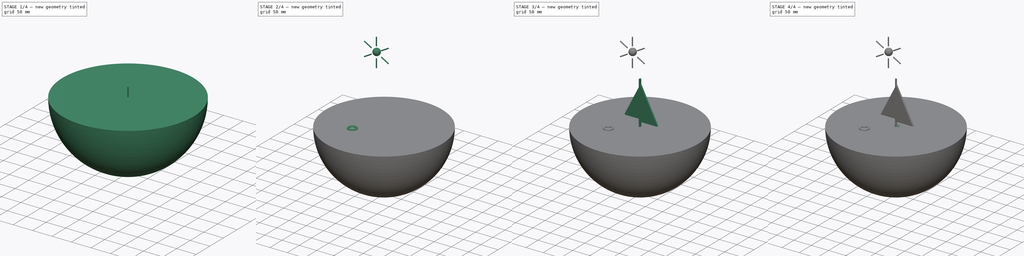
[diagram: build sequence overview — one tinted view per stage of 4, left to right]
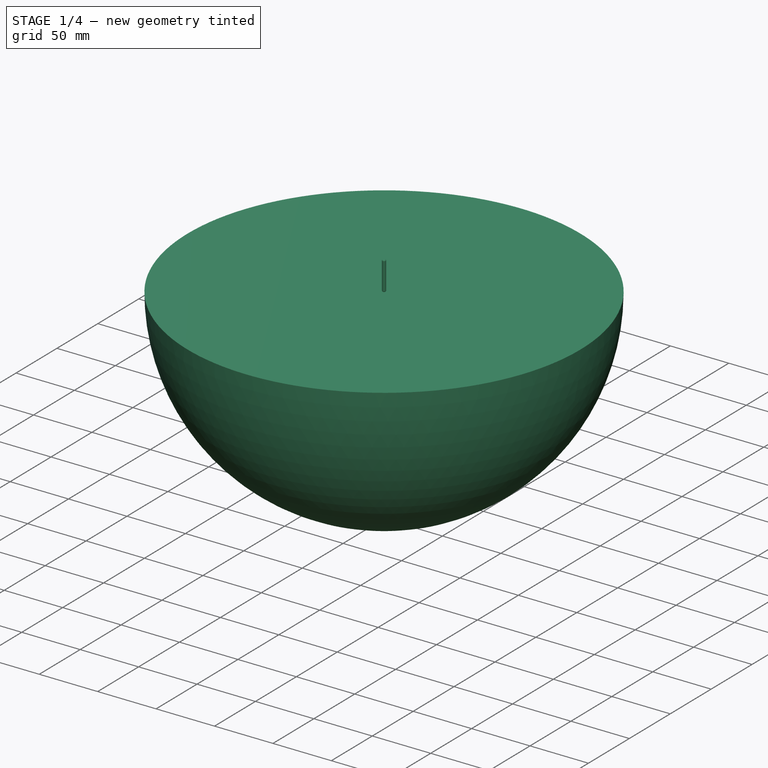
[diagram: stage 1 of 4 — iso view after this stage's code; geometry added in this stage tinted green]
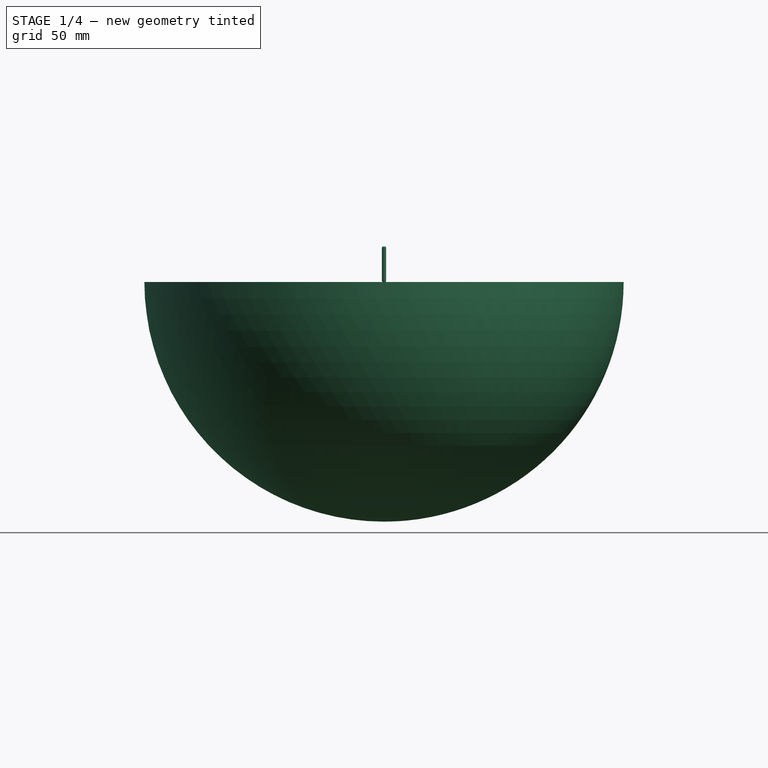
[diagram: stage 1 of 4 — front view after this stage's code; geometry added in this stage tinted green]
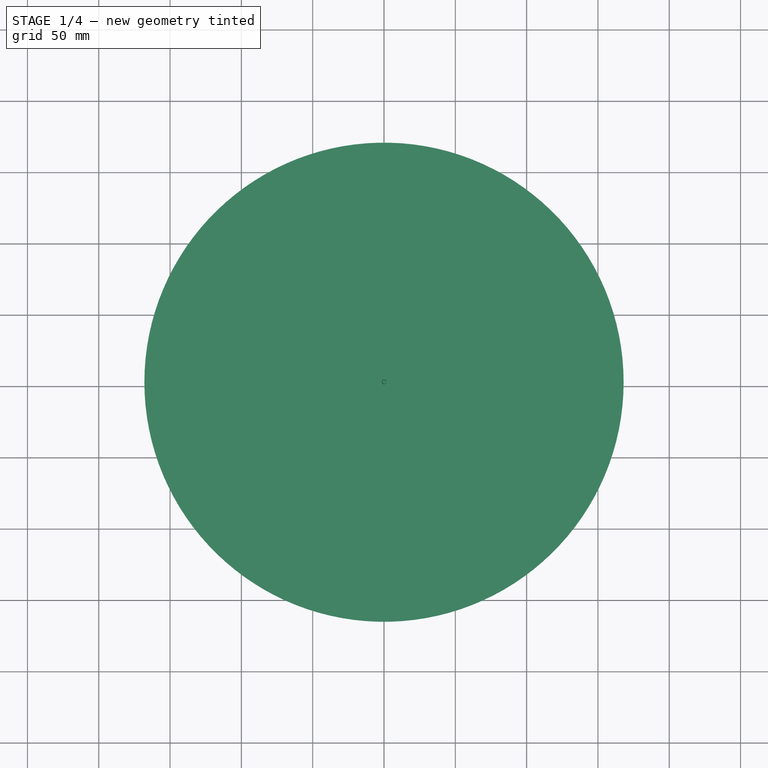
[diagram: stage 1 of 4 — top view after this stage's code; geometry added in this stage tinted green]
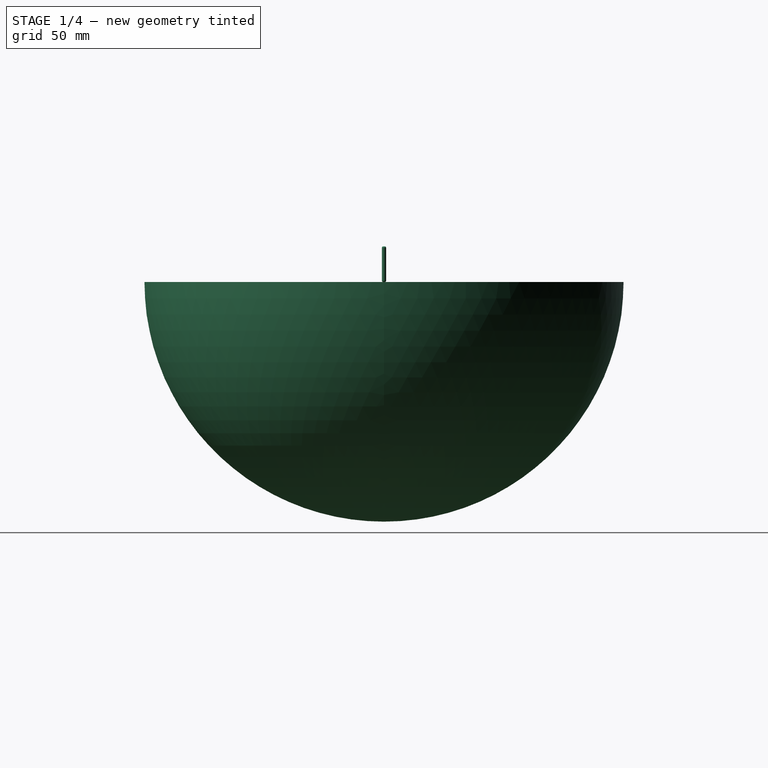
[diagram: stage 1 of 4 — right view after this stage's code; geometry added in this stage tinted green]
FCSTD DOCUMENT  (FreeCAD 0.19R)
Label: MyLittleWorld
License: Creative Commons Attribution-ShareAlike
LicenseURL: http://creativecommons.org/licenses/by-sa/4.0/
objects: App::Part×9, App::Link×6, App::LinkElement×5, PartDesign::Body×4, PartDesign::Fillet×4, Part::Feature×4, Sketcher::SketchObject×3, PartDesign::AdditiveSphere×1, PartDesign::Pad×1, Part::Sphere×1, Part::Torus×1, PartDesign::AdditiveLoft×1, PartDesign::AdditiveCylinder×1, Part::FeaturePython×1
note: 26 computed .brp shape members not serialized (recipe doc carries the construction recipe); baked Part::Feature solids carry a one-line shape summary decoded from their .brp

FEATURE [PartDesign::AdditiveSphere] Sphere
  Angle1 = -90
  Angle2 = 0
  Angle3 = 360
  AttacherType = Attacher::AttachEngine3D
  Radius = 168
  expr: Radius = 42 * 4
FEATURE [PartDesign::Body] Body002  label="Seagull_Body"
  Group = -> [Sketch001,Sketch002,AdditiveLoft]
  Origin = -> Origin003
  Placement = pos=(63,0,7) rot=(0,1,0;0.523599rad)
  Tip = -> AdditiveLoft
FEATURE [App::Link] Link  label="Seagull_Link"
  LinkPlacement = pos=(-96.1008,2.14946,-5) rot=(-0.295804,0.200858,0.933893;0.682321rad)
  LinkedObject = -> Body002
  Placement = pos=(-96.1008,2.14946,-5) rot=(-0.295804,0.200858,0.933893;0.682321rad)
FEATURE [Part::Feature] Link__sc_export  label="Seagull_sc_export"
  Placement = pos=(-32.5013,185.634,-31.0649) rot=(-0.793638,-0.348669,0.498567;0.271776rad)
  shape: bbox 17.76 x 12.3 x 10.99 mm, 4 faces (baked)
FEATURE [App::LinkElement] Link001_i0  label="Link001_i0_BR"
  LinkPlacement = pos=(54.339,190.451,-33.0404) rot=(-0.042799,-0.193053,-0.980254;0.444837rad)
  LinkedObject = -> Link__sc_export
  Placement = pos=(54.339,190.451,-33.0404) rot=(-0.042799,-0.193053,-0.980254;0.444837rad)
FEATURE [App::LinkElement] Link001_i1  label="Link001_i1_BL"
  LinkPlacement = pos=(-120.304,186.259,-13.2356) rot=(-0.111133,0.111133,0.987572;1.1442rad)
  LinkedObject = -> Link__sc_export
  Placement = pos=(-120.304,186.259,-13.2356) rot=(-0.111133,0.111133,0.987572;1.1442rad)
  Scale = 0.6
  ScaleVector = (0.6,0.6,0.6)
FEATURE [App::LinkElement] Link001_i2  label="Link001_i2_FL"
  LinkPlacement = pos=(-114.904,-8.05105,-23.1913) rot=(0.078182,-0.101888,0.991719;1.49182rad)
  LinkedObject = -> Link__sc_export
  Placement = pos=(-114.904,-8.05105,-23.1913) rot=(0.078182,-0.101888,0.991719;1.49182rad)
  Scale = 0.9
  ScaleVector = (0.9,0.9,0.9)
FEATURE [App::LinkElement] Link001_i3  label="Link001_i3_FR"
  LinkPlacement = pos=(101.67,2.6489,-29.7002) rot=(-0.409065,-0.236174,-0.881412;1.1598rad)
  LinkedObject = -> Link__sc_export
  Placement = pos=(101.67,2.6489,-29.7002) rot=(-0.409065,-0.236174,-0.881412;1.1598rad)
FEATURE [App::LinkElement] Link001_i4  label="Link001_i4_FC"
  LinkPlacement = pos=(-29.7043,-10.2448,-2.39746) rot=(-0.622893,-0.359627,0.694747;0.7362rad)
  LinkedObject = -> Link__sc_export
  Placement = pos=(-29.7043,-10.2448,-2.39746) rot=(-0.622893,-0.359627,0.694747;0.7362rad)
  Scale = 0.8
  ScaleVector = (0.8,0.8,0.8)
FEATURE [App::Link] Link001  label="Seagull_Array"
  ElementCount = 5
  ElementList = -> [Link001_i0,Link001_i1,Link001_i2,Link001_i3,Link001_i4]
  LinkedObject = -> Link__sc_export
FEATURE [App::Part] Part001  label="Seagulls"
  Group = -> [Body002,Link,Link__sc_export,Link001]
  Origin = -> Origin004
  Placement = pos=(0,0,130) rot=(0,0,1;0rad)
FEATURE [App::Link] Link002  label="Ship_Link"
  LinkedObject = -> Part004
FEATURE [App::Part] Part006  label="Torus_Part"
  Group = -> [Torus]
  Origin = -> Origin009
FEATURE [App::Link] Link003  label="Torus_Link"
  LinkedObject = -> Part006
FEATURE [App::Link] Link004  label="Sun_Link"
  LinkedObject = -> Part005
FEATURE [PartDesign::AdditiveCylinder] Cylinder
  Angle = 360
  AttacherType = Attacher::AttachEngine3D
  Height = 25
  Radius = 1.5
FEATURE [PartDesign::Fillet] Fillet003
  Base = -> Cylinder [Face1]
  BaseFeature = -> Cylinder
  Radius = 1
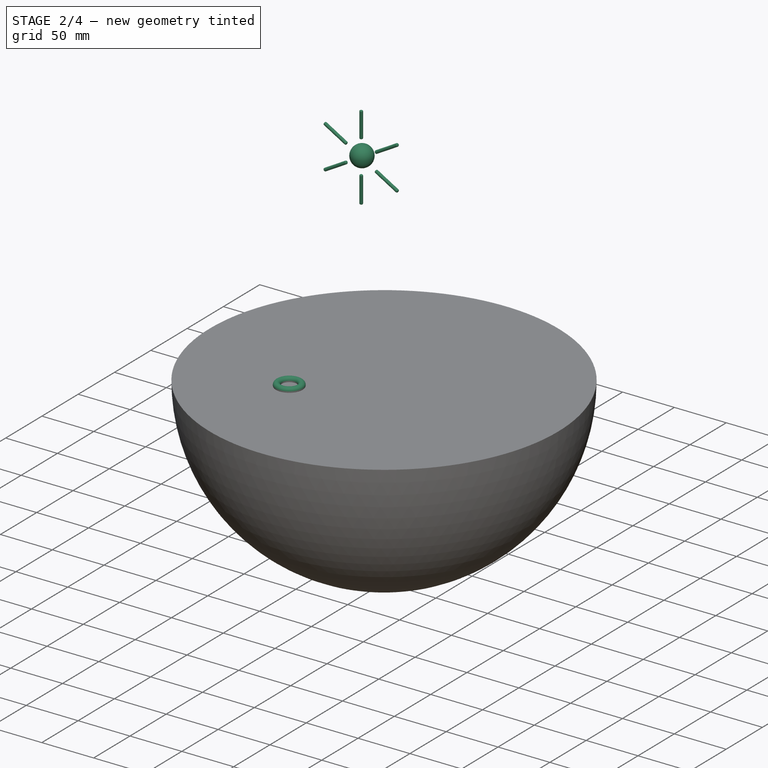
[diagram: stage 2 of 4 — iso view after this stage's code; geometry added in this stage tinted green]
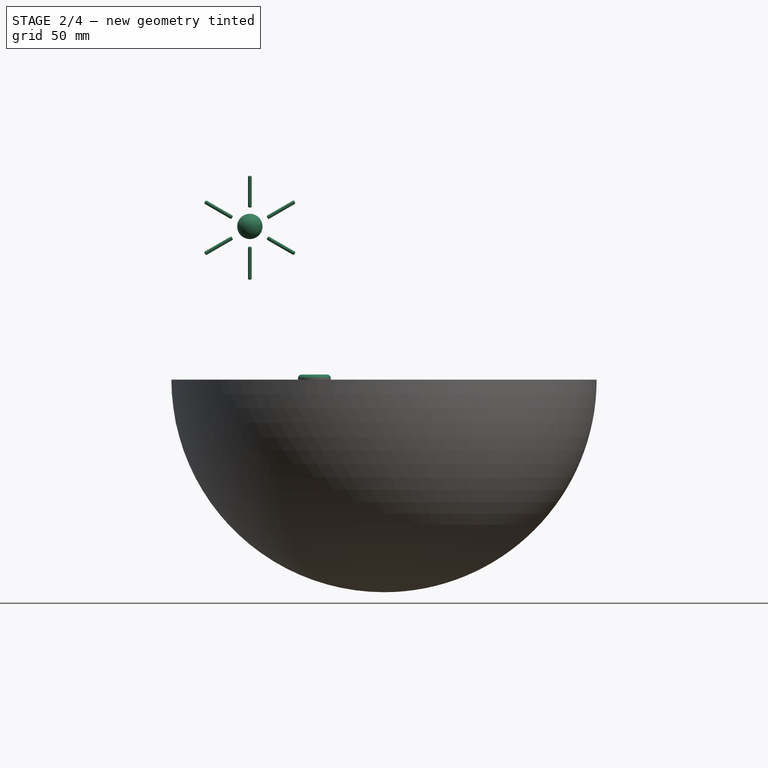
[diagram: stage 2 of 4 — front view after this stage's code; geometry added in this stage tinted green]
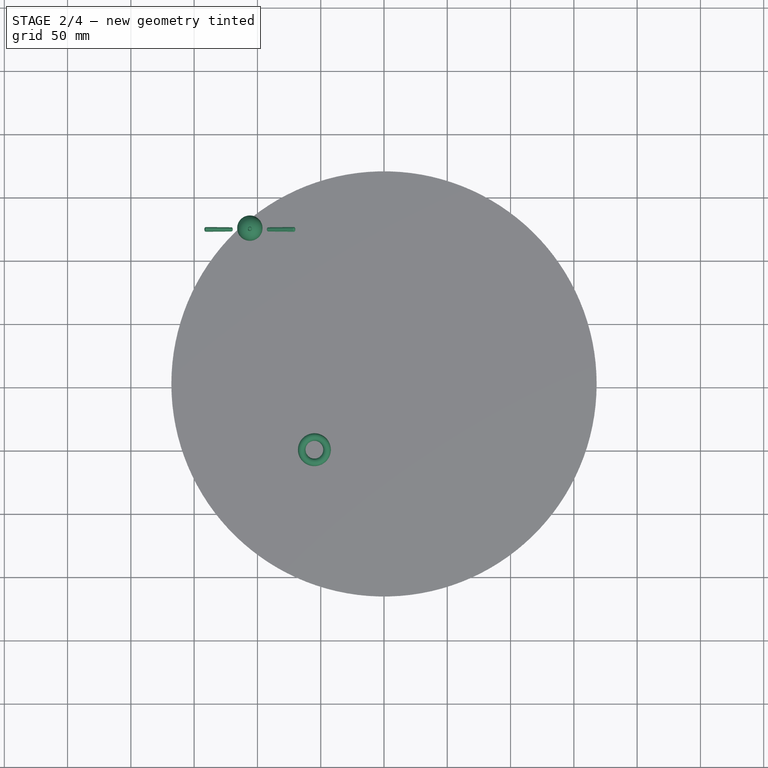
[diagram: stage 2 of 4 — top view after this stage's code; geometry added in this stage tinted green]
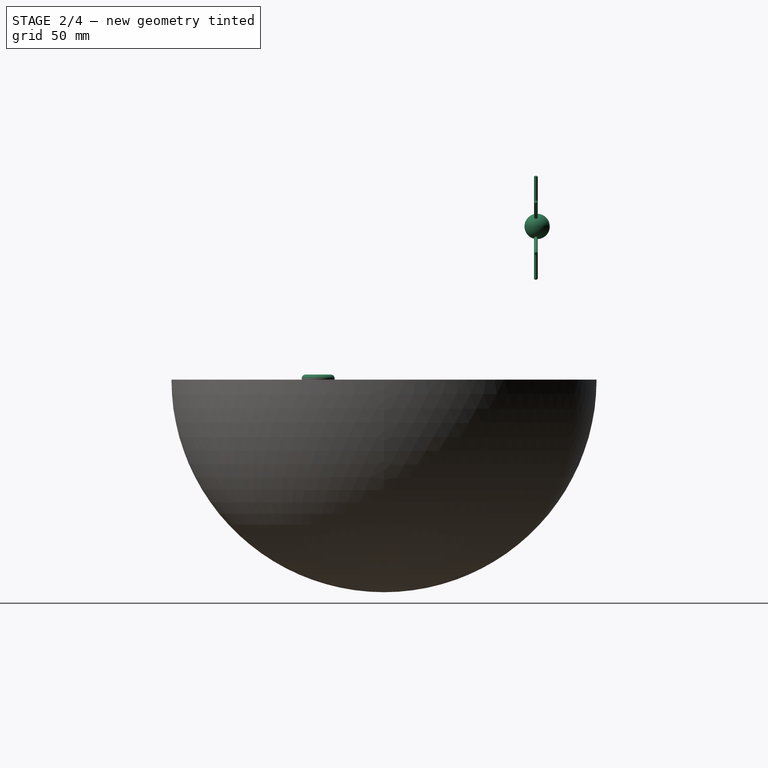
[diagram: stage 2 of 4 — right view after this stage's code; geometry added in this stage tinted green]
FEATURE [PartDesign::Body] Body001  label="Ship_Body"
  Group = -> [Sketch,Pad,Fillet,Fillet001,Fillet002]
  Origin = -> Origin002
  Placement = pos=(0,5,24) rot=(0,0,1;0rad)
  Tip = -> Fillet002
FEATURE [Part::Sphere] Sphere001  label="Sun_Sphere"
  Angle1 = -90
  Angle2 = 90
  Angle3 = 360
  AttacherType = Attacher::AttachEngine3D
  Placement = pos=(-106,121,121) rot=(0,0,1;1.309rad)
  Radius = 10
FEATURE [Part::Torus] Torus
  Angle1 = -180
  Angle2 = 180
  Angle3 = 360
  AttacherType = Attacher::AttachEngine3D
  Placement = pos=(-55,-52,1) rot=(0,0,1;0rad)
  Radius1 = 10
  Radius2 = 3
FEATURE [PartDesign::Body] Body003  label="SunBeam_Body"
  Group = -> [Cylinder,Fillet003]
  Origin = -> Origin010
  Tip = -> Fillet003
FEATURE [Part::Feature] Body001__sc_export  label="Ship_Body__sc_export"
  Placement = pos=(0,5,24) rot=(0,0,1;0rad)
  shape: bbox 165.8 x 4.2 x 168 mm, 77 faces (baked)
FEATURE [App::Part] Part004  label="Ship_Part"
  Group = -> [Body001,Body001__sc_export]
  Origin = -> Origin007
FEATURE [App::Link] Link005  label="SunBeam_Part_Link"
  LinkedObject = -> Part007
FEATURE [Part::FeaturePython] Array  # Draft array (typed FeaturePython)
  Angle = 360
  ArrayType = 2
  Axis = (0,1,0)
  Base = -> Link005
  Center = (0,0,40)
  Fuse = false
  IntervalAxis = (0,0,0)
  IntervalX = (1,0,0)
  IntervalY = (0,1,0)
  IntervalZ = (0,0,1)
  NumberCircles = 2
  NumberPolar = 6
  NumberX = 1
  NumberY = 1
  NumberZ = 1
  Placement = pos=(-106,120,80) rot=(0,0,1;0rad)
  RadialDistance = 1
  Symmetry = 1
  TangentialDistance = 1
FEATURE [Part::Feature] Body003__sc_export  label="SunBeam_Body__sc_export"
  shape: bbox 3 x 3 x 25 mm, 5 faces (baked)
FEATURE [App::Part] Part007  label="SunBeam_Part"
  Group = -> [Body003,Body003__sc_export]
  Origin = -> Origin011
FEATURE [App::Part] Part005  label="Sun_Part"
  Group = -> [Sphere001,Part007,Link005,Array]
  Origin = -> Origin008
FEATURE [App::Part] Part002  label="parts"
  Group = -> [Part004,Part005,Part006]
  Origin = -> Origin005
FEATURE [Part::Feature] Body__sc_export  label="World_Body__sc_export"
  shape: bbox 336 x 336 x 168 mm, 2 faces (baked)
FEATURE [App::Part] Part008  label="World_Part"
  Group = -> [Body,Body__sc_export]
  Origin = -> Origin012
FEATURE [App::Part] Part  label="MyLittleWorld"
  Group = -> [Link002,Link003,Link004,Part001,Part008]
  Origin = -> Origin001
FEATURE [App::Part] Part003  label="MyLittleWorld_Wrapper"
  Group = -> [Part002,Part]
  Origin = -> Origin006
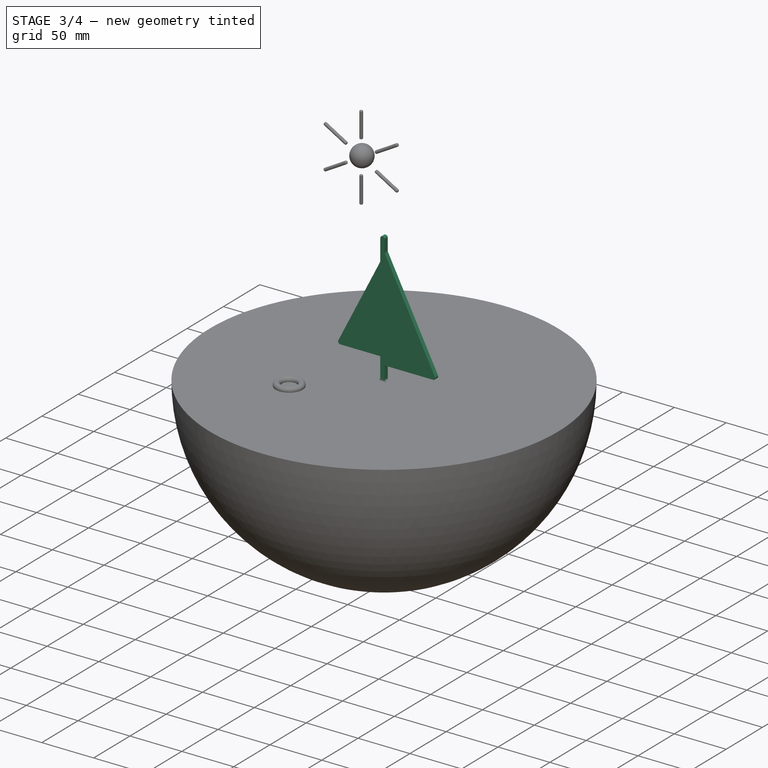
[diagram: stage 3 of 4 — iso view after this stage's code; geometry added in this stage tinted green]
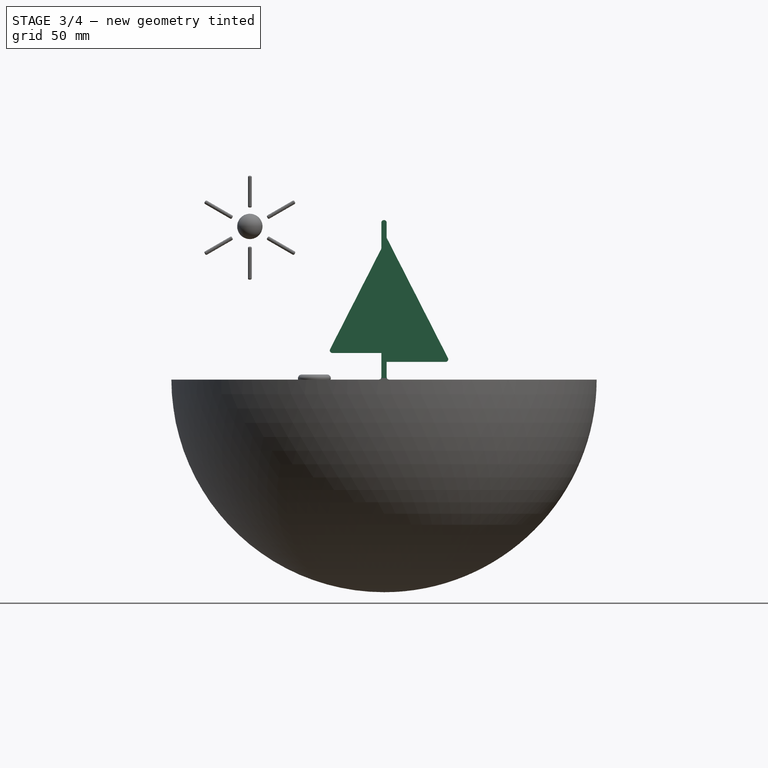
[diagram: stage 3 of 4 — front view after this stage's code; geometry added in this stage tinted green]
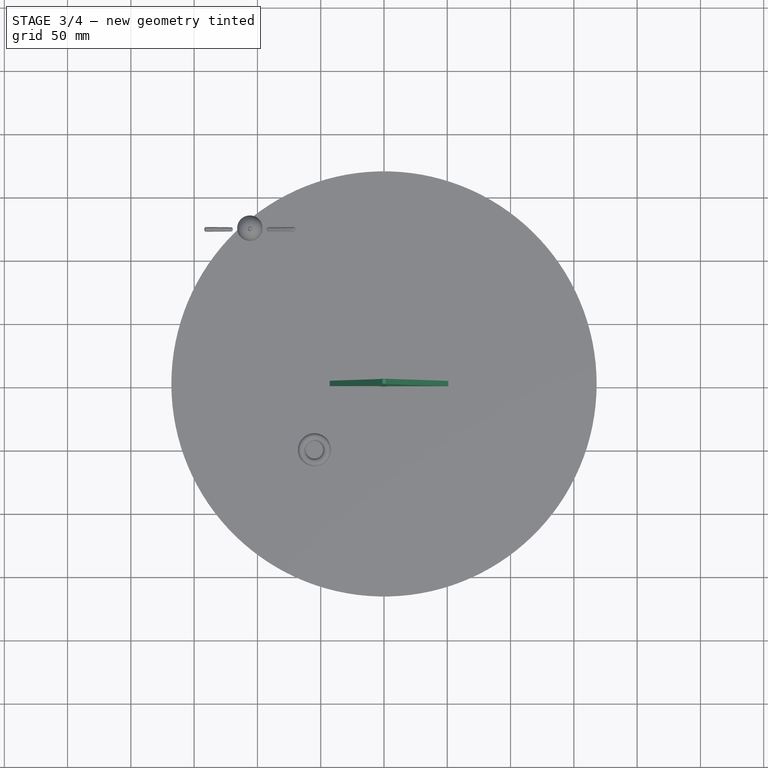
[diagram: stage 3 of 4 — top view after this stage's code; geometry added in this stage tinted green]
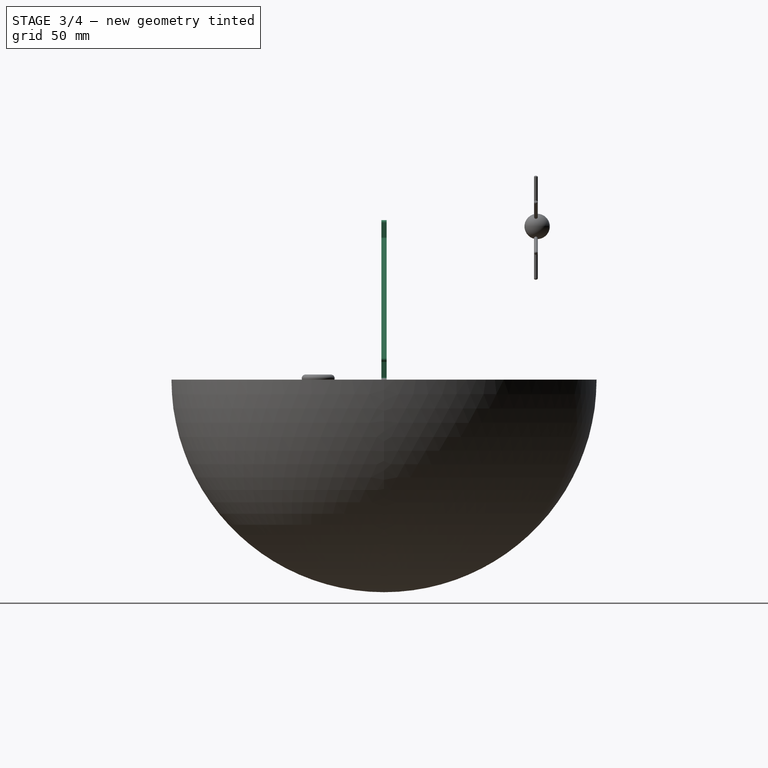
[diagram: stage 3 of 4 — right view after this stage's code; geometry added in this stage tinted green]
FEATURE [PartDesign::Body] Body  label="World_Body"
  Group = -> [Sphere]
  Origin = -> Origin
  Tip = -> Sphere
FEATURE [Sketcher::SketchObject] Sketch
  MapMode = 5
  Placement = pos=(0,0,0) rot=(1,0,0;1.5708rad)
  Support = -> [XZ_Plane002]
  expr: Constraints[44] = 42 / 3
  expr: Constraints[42] = 42 * 1.5
  expr: Constraints[40] = 42 * 1.5
  expr: Constraints[39] = 3 * 42
  expr: Constraints[38] = 2 * 42
  expr: Constraints[43] = 42 / 2
  expr: Constraints[34] = 4 * 42
  sketch-geometry (16):
    g0: LineSegment StartX=-86.1 StartY=0 StartZ=0 EndX=-44.6684 EndY=-37.3052 EndZ=0
    g1: LineSegment StartX=-44.6684 StartY=-37.3052 StartZ=0 EndX=0 EndY=-42 EndZ=0
    g2: LineSegment StartX=0 StartY=-42 StartZ=0 EndX=44.6684 EndY=-37.3052 EndZ=0
    g3: LineSegment StartX=44.6684 StartY=-37.3052 StartZ=0 EndX=86.1 EndY=0 EndZ=0
    g4: LineSegment StartX=86.1 StartY=0 StartZ=0 EndX=2.1 EndY=0 EndZ=0
    g5: LineSegment StartX=2.1 StartY=0 StartZ=0 EndX=2.1 EndY=14 EndZ=0
    g6: LineSegment StartX=2.1 StartY=14 StartZ=0 EndX=52.0335 EndY=14 EndZ=0
    g7: LineSegment StartX=52.0335 StartY=14 StartZ=0 EndX=2.1 EndY=112 EndZ=0
    g8: LineSegment StartX=2.1 StartY=112 StartZ=0 EndX=2.1 EndY=126 EndZ=0
    g9: LineSegment StartX=2.1 StartY=126 StartZ=0 EndX=-2.1 EndY=126 EndZ=0
    g10: LineSegment StartX=-2.1 StartY=126 StartZ=0 EndX=-2.1 EndY=103.43 EndZ=0
    g11: LineSegment StartX=-2.1 StartY=103.43 StartZ=0 EndX=-44.1 EndY=21 EndZ=0
    g12: LineSegment StartX=-44.1 StartY=21 StartZ=0 EndX=-2.1 EndY=21 EndZ=0
    g13: LineSegment StartX=-2.1 StartY=21 StartZ=0 EndX=-2.1 EndY=0 EndZ=0
    g14: LineSegment StartX=-2.1 StartY=0 StartZ=0 EndX=-86.1 EndY=0 EndZ=0
    g15: LineSegment [constr] StartX=-2.1 StartY=0 StartZ=0 EndX=2.1 EndY=0 EndZ=0
  constraints (46):
    c: Coincident(g0,g1)
    c: Coincident(g1,g2)
    c: Coincident(g2,g3)
    c: Coincident(g3,g4)
    c: Horizontal(g4)
    c: Coincident(g4,g5)
    c: Coincident(g5,g6)
    c: Horizontal(g6)
    c: Coincident(g6,g7)
    c: Coincident(g7,g8)
    c: Coincident(g8,g9)
    c: Horizontal(g9)
    c: Coincident(g9,g10)
    c: Vertical(g10)
    c: Coincident(g10,g11)
    c: Coincident(g11,g12)
    c: Horizontal(g12)
    c: Coincident(g12,g13)
    c: Coincident(g13,g14)
    c: Coincident(g14,g0)
    c: Horizontal(g14)
    c: Vertical(g13)
    c: Vertical(g5)
    c: Vertical(g8)
    c: Horizontal(g15)
    c: Coincident(g15,g4)
    c: Coincident(g13,g15)
    c: Symmetric(g15,g15,g-1)
    c: Equal(g15,g9)
    c: DistanceX(g9,g9) = 4.2
    c: PointOnObject(g10,g13)
    c: PointOnObject(g1,g-2)
    c: Angle(g4,g3) = 0.733038
    c: Angle(g0,g14) = 0.733038
    c: Angle(g2,g1) = 2.93215
    c: DistanceY(g1) = -42
    c: Equal(g2,g1)
    c: Equal(g3,g0)
    c: DistanceX(g4,g4) = 84
    c: DistanceY(g9) = 126
    c: Angle(g7,g6) = 1.09956
    c: Equal(g8,g5)
    c: Angle(g12,g11) = 1.09956
    c: DistanceY(g13,g13) = 21
    c: DistanceY(g8,g8) = 14
    c: DistanceX(g12,g12) = 42
FEATURE [PartDesign::Pad] Pad
  Length = 4.2
  Length2 = 100
  Midplane = true
  Placement = pos=(0,0,0) rot=(1,0,0;1.5708rad)
  Profile = -> Sketch
  Type = 0
FEATURE [PartDesign::Fillet] Fillet001
  Base = -> Pad [Edge11,Edge1,Edge41,Edge14,Edge35,Edge20,Edge26,Edge29,Edge23,Edge32]
  BaseFeature = -> Pad
  Placement = pos=(0,0,0) rot=(1,0,0;1.5708rad)
  Radius = 2
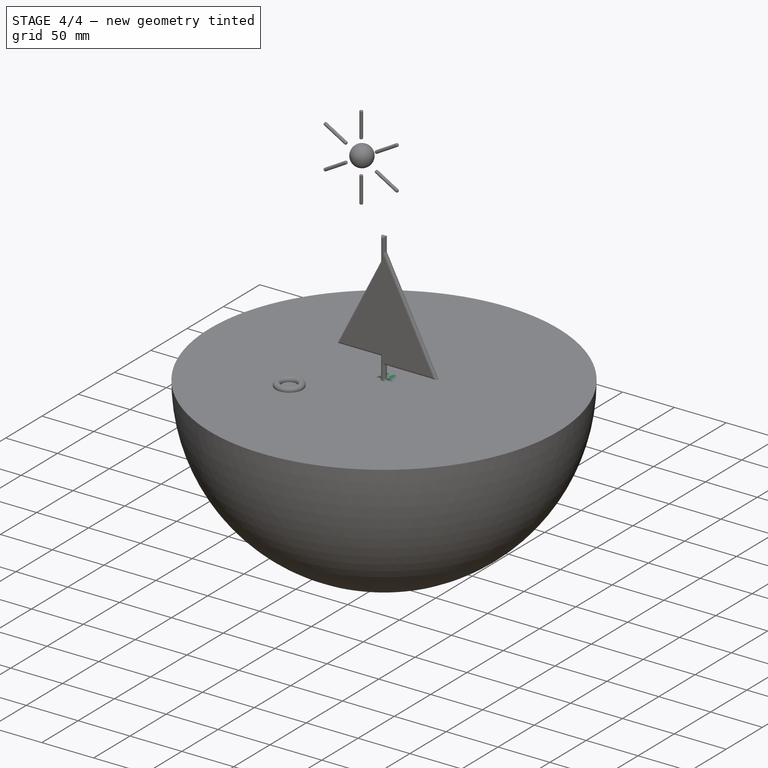
[diagram: stage 4 of 4 — iso view after this stage's code; geometry added in this stage tinted green]
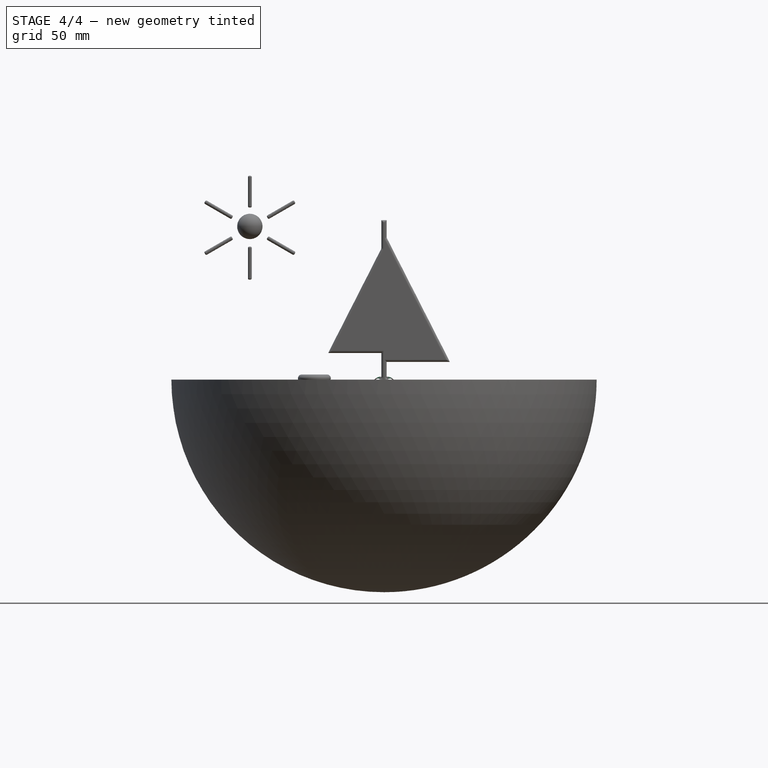
[diagram: stage 4 of 4 — front view after this stage's code; geometry added in this stage tinted green]
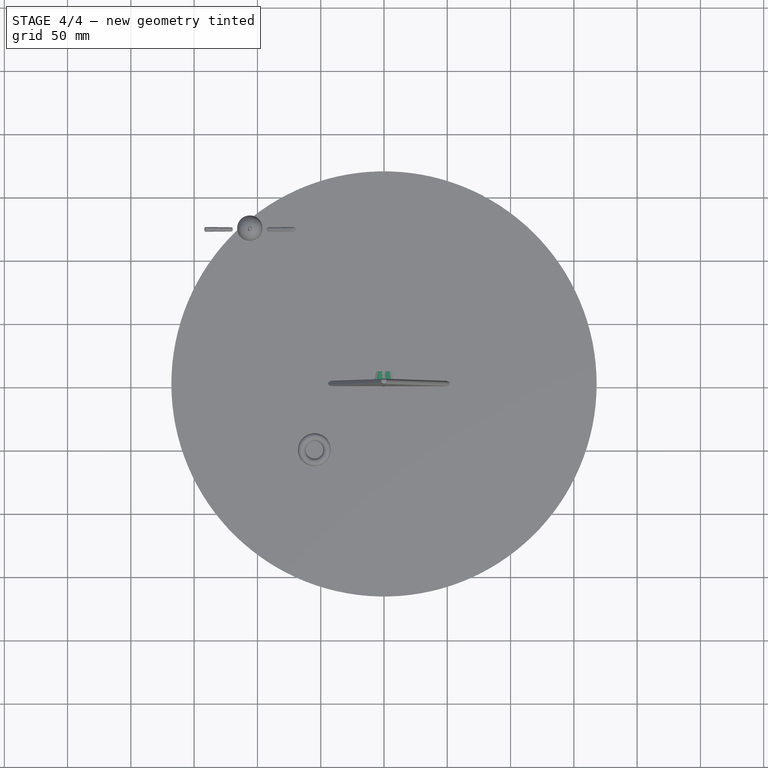
[diagram: stage 4 of 4 — top view after this stage's code; geometry added in this stage tinted green]
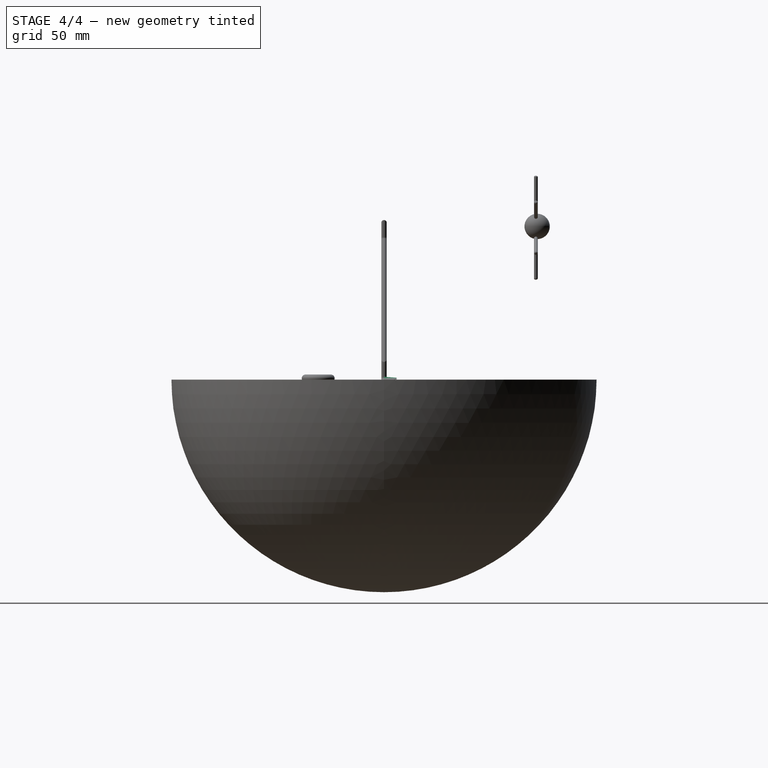
[diagram: stage 4 of 4 — right view after this stage's code; geometry added in this stage tinted green]
FEATURE [PartDesign::Fillet] Fillet
  Base = -> Pad [Face16,Face17]
  BaseFeature = -> Pad
  Placement = pos=(0,0,0) rot=(1,0,0;1.5708rad)
  Radius = 2
FEATURE [PartDesign::Fillet] Fillet002
  Base = -> Fillet001 [Face5,Face2]
  BaseFeature = -> Fillet001
  Placement = pos=(0,0,0) rot=(1,0,0;1.5708rad)
  Radius = 2
FEATURE [Sketcher::SketchObject] Sketch001  label="Moewe1"
  MapMode = 5
  Placement = pos=(0,0,0) rot=(1,0,0;1.5708rad)
  Support = -> [XZ_Plane003]
  sketch-geometry (24):
    g0-g4: Circle [constr] x5 (B-spline internal-alignment scaffolding for g5; pole/knot coordinates omitted)
    g5: BSplineCurve PolesCount=5 KnotsCount=3 Degree=3 IsPeriodic=0
    g6: GeomPoint [constr] X=-9 Y=-1.5 Z=0
    g7: GeomPoint [constr] X=0 Y=1.26316 Z=0
    g8: GeomPoint [constr] X=9 Y=-1.5 Z=0
    g9: LineSegment [constr] StartX=-9 StartY=-1.5 StartZ=0 EndX=9 EndY=-1.5 EndZ=0
    g10: LineSegment [constr] StartX=-3.75 StartY=6 StartZ=0 EndX=3.75 EndY=6 EndZ=0
    g11: GeomPoint X=0 Y=6 Z=0
    g12: GeomPoint X=0 Y=-1.5 Z=0
    g13: LineSegment [constr] StartX=-5 StartY=3.3 StartZ=0 EndX=5 EndY=3.3 EndZ=0
    g14: GeomPoint X=0 Y=3.3 Z=0
    g15-g19: Circle [constr] x5 (B-spline internal-alignment scaffolding for g20; pole/knot coordinates omitted)
    g20: BSplineCurve PolesCount=5 KnotsCount=3 Degree=3 IsPeriodic=0
    g21: GeomPoint [constr] X=-9 Y=-1.5 Z=0
    g22: GeomPoint [constr] X=0 Y=-0.85 Z=0
    g23: GeomPoint [constr] X=9 Y=-1.5 Z=0
  constraints (41):
    c: Radius(g0) = 0.8
    c: Equal(g0,g1)
    c: Equal(g0,g3)
    c: Equal(g0,g4)
    c: InternalAlignment(g0-g4 -> g5) x5
    c: InternalAlignment(g6,g5)
    c: InternalAlignment(g7,g5)
    c: InternalAlignment(g8,g5)
    c: Coincident(g2,g-1)
    c: Horizontal(g9)
    c: Horizontal(g10)
    c: Coincident(g10,g3)
    c: Coincident(g10,g1)
    c: Symmetric(g10,g10,g11)
    c: PointOnObject(g11,g-2)
    c: Radius(g2) = 3
    c: DistanceY(g11) = 6
    c: DistanceX(g10,g10) = 7.5
    c: Coincident(g9,g5)
    c: Coincident(g5,g9)
    c: Symmetric(g9,g9,g12)
    c: PointOnObject(g12,g-2)
    c: DistanceY(g12) = -1.5
    c: DistanceX(g9,g9) = 18
    c: Horizontal(g13)
    c: Symmetric(g13,g13,g14)
    c: PointOnObject(g14,g-2)
    c: Radius(g15) = 0.9
    c: Equal(g15, g16-g19) x4
    c: InternalAlignment(g15-g19 -> g20) x5
    c: InternalAlignment(g21,g20)
    c: InternalAlignment(g22,g20)
    c: InternalAlignment(g23,g20)
    c: PointOnObject(g17,g-2)
    c: Coincident(g13,g18)
    c: Coincident(g13,g16)
    c: Coincident(g20,g5)
    c: Coincident(g20,g5)
    c: DistanceX(g13,g13) = 10
    c: DistanceY(g14) = 3.3
    c: DistanceY(g17) = -5
FEATURE [Sketcher::SketchObject] Sketch002  label="Moewe2"
  AttachmentOffset = pos=(0,0,-10) rot=(0,0,1;0rad)
  MapMode = 5
  Placement = pos=(0,10,2.2e-15) rot=(1,0,0;1.5708rad)
  Support = -> [XZ_Plane003]
  sketch-geometry (24):
    g0-g4: Circle [constr] x5 (B-spline internal-alignment scaffolding for g5; pole/knot coordinates omitted)
    g5: BSplineCurve PolesCount=5 KnotsCount=3 Degree=3 IsPeriodic=0
    g6: GeomPoint [constr] X=-6 Y=0.4 Z=0
    g7: GeomPoint [constr] X=0 Y=0.521739 Z=0
    g8: GeomPoint [constr] X=6 Y=0.4 Z=0
    g9: LineSegment [constr] StartX=-6 StartY=0.4 StartZ=0 EndX=6 EndY=0.4 EndZ=0
    g10: LineSegment [constr] StartX=-2.75 StartY=3 StartZ=0 EndX=2.75 EndY=3 EndZ=0
    g11: GeomPoint X=0 Y=3 Z=0
    g12: GeomPoint X=0 Y=0.4 Z=0
    g13: LineSegment [constr] StartX=-3 StartY=2.3 StartZ=0 EndX=3 EndY=2.3 EndZ=0
    g14: GeomPoint X=0 Y=2.3 Z=0
    g15-g19: Circle [constr] x5 (B-spline internal-alignment scaffolding for g20; pole/knot coordinates omitted)
    g20: BSplineCurve PolesCount=5 KnotsCount=3 Degree=3 IsPeriodic=0
    g21: GeomPoint [constr] X=-6 Y=0.4 Z=0
    g22: GeomPoint [constr] X=0 Y=0.15 Z=0
    g23: GeomPoint [constr] X=6 Y=0.4 Z=0
  constraints (42):
    c: Radius(g0) = 0.8
    c: Equal(g0,g1)
    c: Equal(g0,g3)
    c: Equal(g0,g4)
    c: InternalAlignment(g0-g4 -> g5) x5
    c: InternalAlignment(g6,g5)
    c: InternalAlignment(g7,g5)
    c: InternalAlignment(g8,g5)
    c: Horizontal(g9)
    c: Horizontal(g10)
    c: Coincident(g10,g3)
    c: Coincident(g10,g1)
    c: Symmetric(g10,g10,g11)
    c: PointOnObject(g11,g-2)
    c: Radius(g2) = 1.5
    c: DistanceY(g11) = 3
    c: DistanceX(g10,g10) = 5.5
    c: Coincident(g9,g5)
    c: Coincident(g5,g9)
    c: Symmetric(g9,g9,g12)
    c: PointOnObject(g12,g-2)
    c: DistanceY(g12) = 0.4
    c: DistanceX(g9,g9) = 12
    c: Horizontal(g13)
    c: Symmetric(g13,g13,g14)
    c: PointOnObject(g14,g-2)
    c: Radius(g15) = 0.9
    c: Equal(g15, g16-g19) x4
    c: InternalAlignment(g15-g19 -> g20) x5
    c: InternalAlignment(g21,g20)
    c: InternalAlignment(g22,g20)
    c: InternalAlignment(g23,g20)
    c: PointOnObject(g17,g-2)
    c: Coincident(g13,g18)
    c: Coincident(g13,g16)
    c: Coincident(g20,g5)
    c: Coincident(g20,g5)
    c: DistanceX(g13,g13) = 6
    c: DistanceY(g14) = 2.3
    c: DistanceY(g17) = -2
    c: PointOnObject(g2,g-2)
    c: DistanceY(g2) = -0.8
FEATURE [PartDesign::AdditiveLoft] AdditiveLoft
  Closed = true
  Placement = pos=(0,0,0) rot=(1,0,0;1.5708rad)
  Profile = -> Sketch001
  Ruled = true
  Sections = -> [Sketch002]
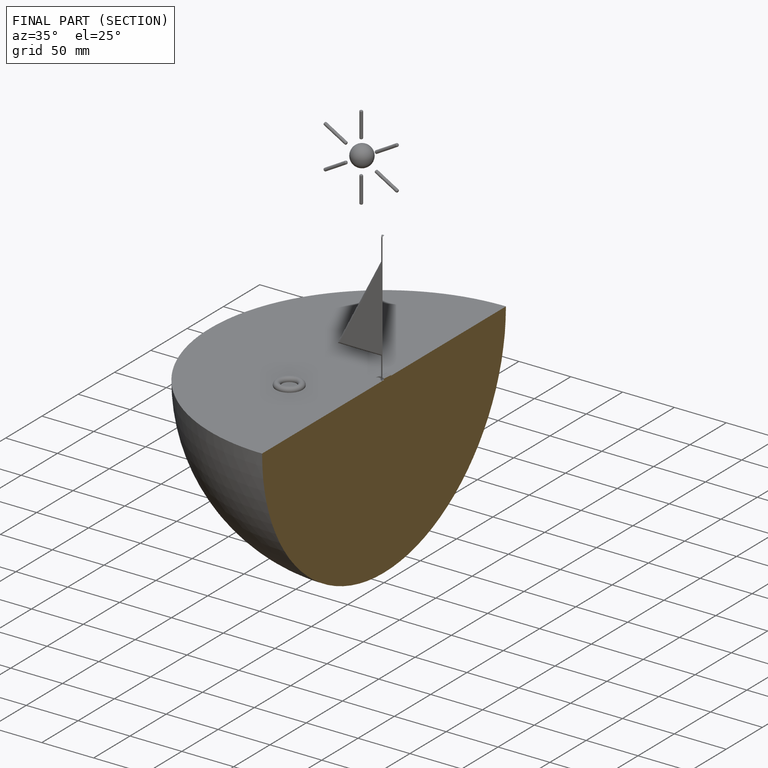
[diagram: finished part — half-section view (interior)]
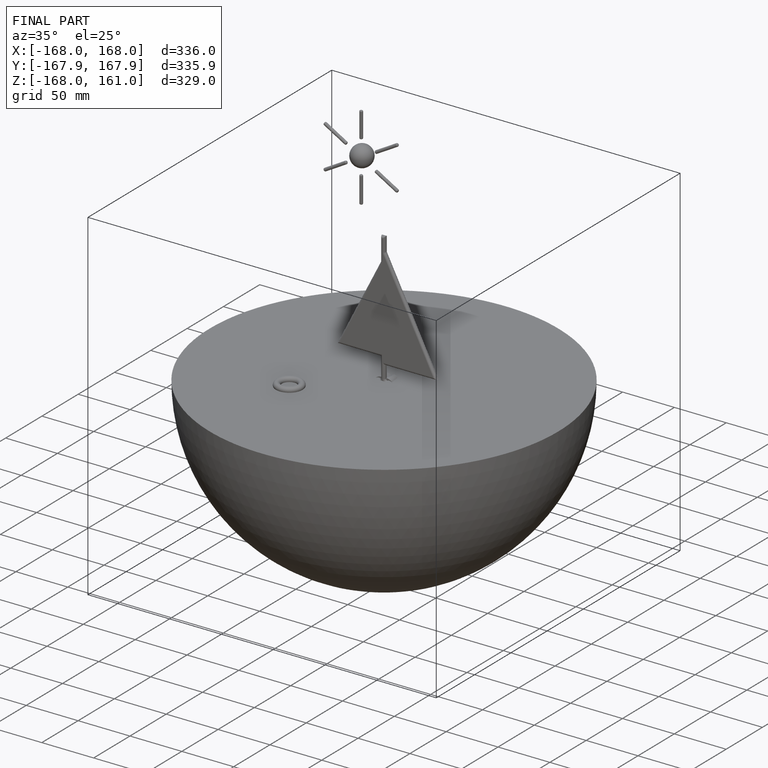
[diagram: finished part — iso view with bounding-box wireframe]
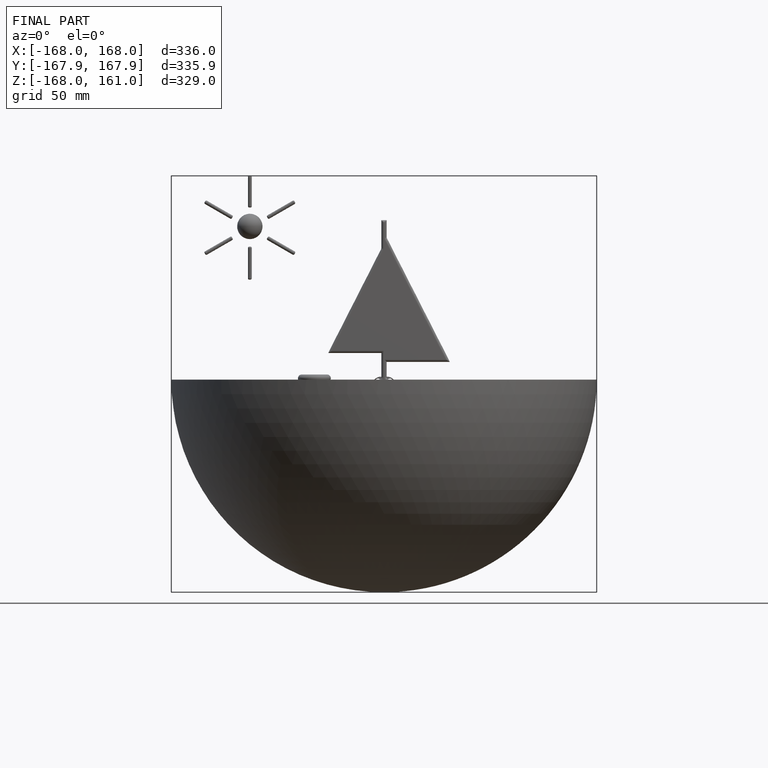
[diagram: finished part — front view with bounding-box wireframe]
